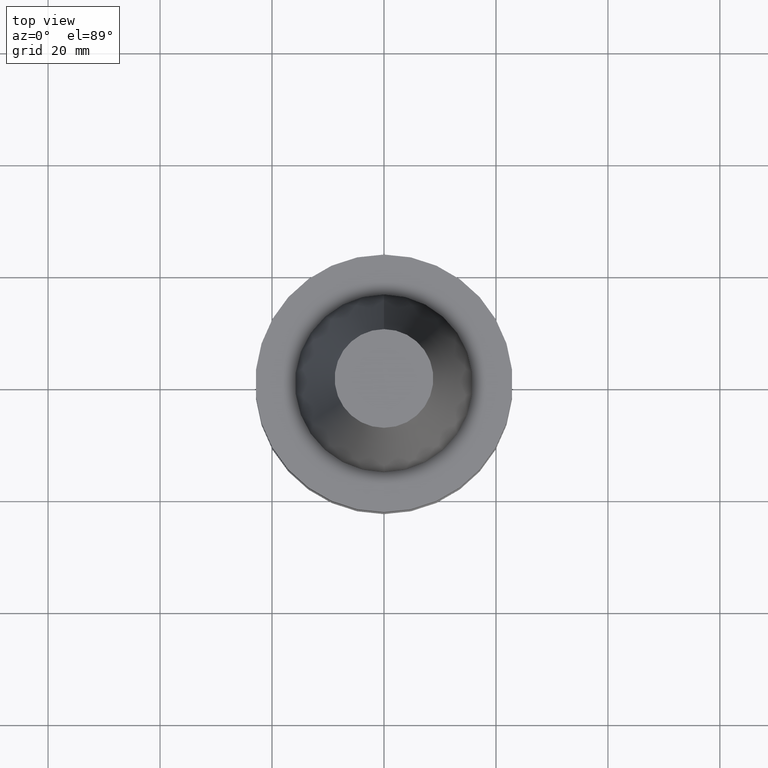
[diagram: clean part render]
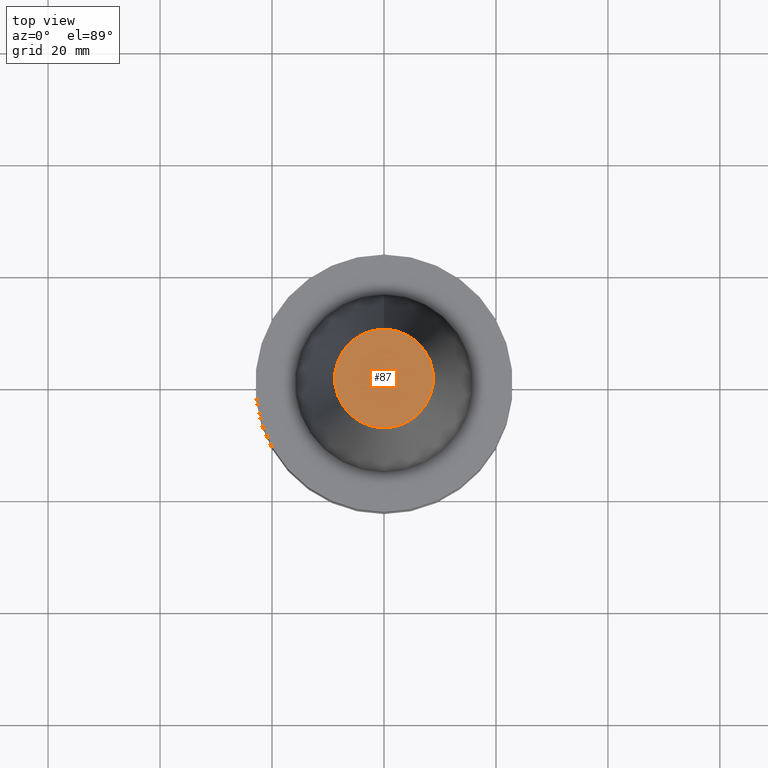
[diagram: same view with one face highlighted and labeled with its STEP entity id]
A machine part, top view. The second image highlights one B-rep face of the part: STEP entity #87.
In plain terms, the highlighted planar face has unit normal (-0, -0, 1).
Its self-contained STEP definition (entity closure, byte-faithful):
#87=ADVANCED_FACE('',(#128),#129,.T.);
#128=FACE_OUTER_BOUND('',#177,.T.);
#129=PLANE('',#178);
#177=EDGE_LOOP('',(#250));
#178=AXIS2_PLACEMENT_3D('',#251,#252,#253);
#250=ORIENTED_EDGE('',*,*,#286,.F.);
#251=CARTESIAN_POINT('',(-2.96364525393659E-015,4.40825000099333,48.4));
#252=DIRECTION('',(-6.12323399573677E-017,-1.22464679914735E-016,1.0));
#253=DIRECTION('',(1.23259516440783E-032,-1.0,-1.22464679914735E-016));
#286=EDGE_CURVE('',#314,#314,#315,.T.);
#314=VERTEX_POINT('',#346);
#315=CIRCLE('',#347,8.81650000198667);
#346=CARTESIAN_POINT('',(-2.96364525393659E-015,8.81650000198666,48.4));
#347=AXIS2_PLACEMENT_3D('',#390,#391,#392);
#390=CARTESIAN_POINT('',(-2.96364525393659E-015,-5.92729050787319E-015,48.4));
#391=DIRECTION('',(6.12323399573676E-017,1.22464679914735E-016,-1.0));
#392=DIRECTION('',(-1.23259516440783E-032,1.0,1.22464679914735E-016));